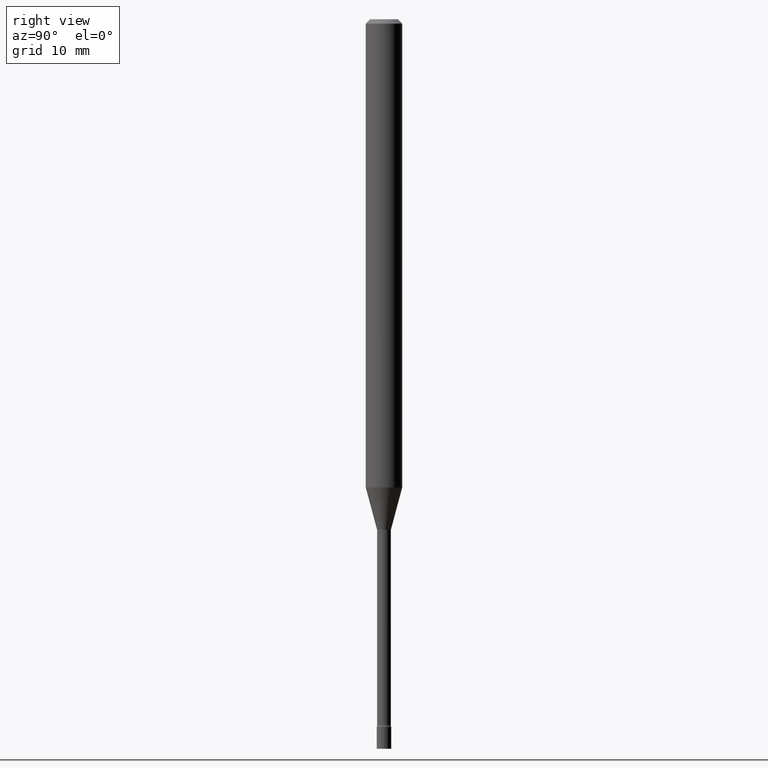
[diagram: clean part render]
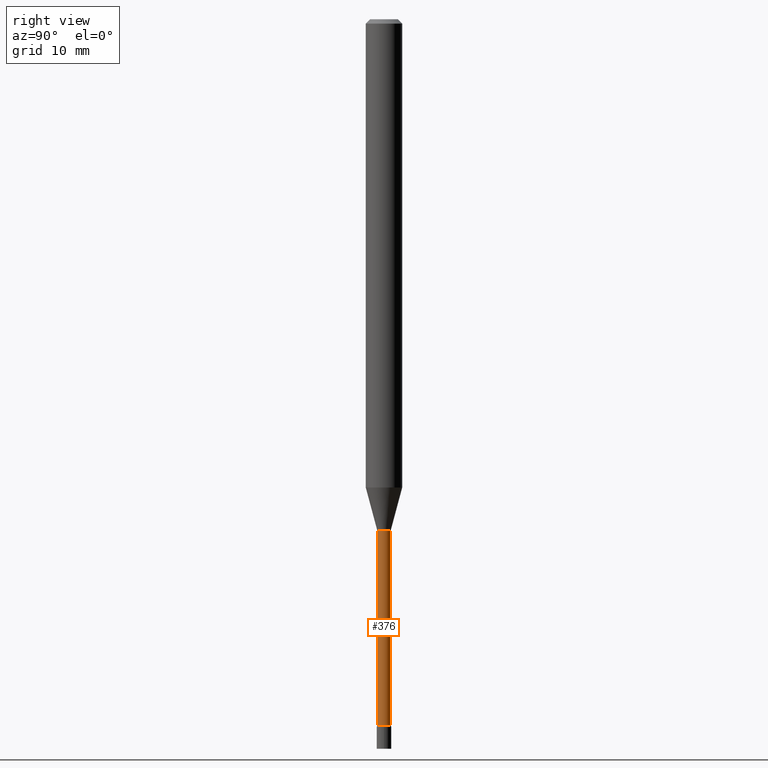
[diagram: same view with one face highlighted and labeled with its STEP entity id]
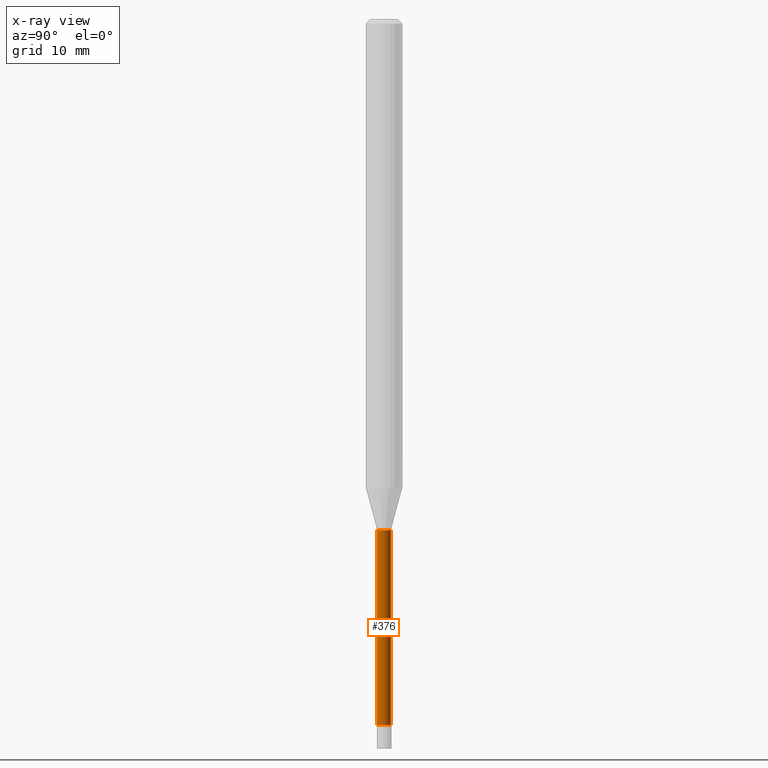
[diagram: x-ray of the same camera — body ghosted, the highlighted face saturated]
A machine part, right view. The second image highlights one B-rep face of the part: STEP entity #376.
The next image is the same camera in x-ray: the body ghosted, the highlighted face saturated — about 0% of this face is hidden behind the body in this view.
In plain terms, the highlighted cylindrical surface (edge-blend (fillet) strip) has radius 0.5969 mm, axis along (-0, 0, 1).
Its self-contained STEP definition (entity closure, byte-faithful):
#16 = CIRCLE ( 'NONE', #319, 0.02350000000000000352 ) ;
#17 = DIRECTION ( 'NONE',  ( -6.982962677686265133E-15, -1.000000000000000000, 0.000000000000000000 ) ) ;
#21 = VERTEX_POINT ( 'NONE', #28 ) ;
#28 = CARTESIAN_POINT ( 'NONE',  ( -1.640996229255844069E-16, -0.02350000000000612016, -1.751974787463811190 ) ) ;
#38 = DIRECTION ( 'NONE',  ( -6.982962677686265922E-15, -1.000000000000000000, 0.000000000000000000 ) ) ;
#54 = ORIENTED_EDGE ( 'NONE', *, *, #152, .F. ) ;
#87 = CARTESIAN_POINT ( 'NONE',  ( 5.914250230797479692E-29, -8.444045655943250067E-15, -2.418461651584689509 ) ) ;
#95 = DIRECTION ( 'NONE',  ( -2.445459586643511658E-29, 3.491494541751495870E-15, 1.000000000000000000 ) ) ;
#141 = ORIENTED_EDGE ( 'NONE', *, *, #272, .T. ) ;
#143 = VECTOR ( 'NONE', #311, 39.37007874015748143 ) ;
#152 = EDGE_CURVE ( 'NONE', #21, #366, #16, .T. ) ;
#176 = ORIENTED_EDGE ( 'NONE', *, *, #479, .T. ) ;
#195 = CIRCLE ( 'NONE', #341, 0.02350000000000008679 ) ;
#196 = DIRECTION ( 'NONE',  ( -2.445459586643511658E-29, 3.491494541751496264E-15, 1.000000000000000000 ) ) ;
#227 = FACE_OUTER_BOUND ( 'NONE', #425, .T. ) ;
#231 = CARTESIAN_POINT ( 'NONE',  ( 1.669775429036238399E-16, 0.02350000000000004516, -8.205012173116032265E-17 ) ) ;
#245 = DIRECTION ( 'NONE',  ( -2.445459586643511658E-29, 3.491494541751496264E-15, 1.000000000000000000 ) ) ;
#272 = EDGE_CURVE ( 'NONE', #411, #366, #502, .T. ) ;
#273 = CARTESIAN_POINT ( 'NONE',  ( -1.640996229255687037E-16, -0.02350000000000853143, -2.418461651584689509 ) ) ;
#288 = ORIENTED_EDGE ( 'NONE', *, *, #355, .F. ) ;
#311 = DIRECTION ( 'NONE',  ( -2.445459586643511658E-29, 3.491494541751495870E-15, 1.000000000000000000 ) ) ;
#319 = AXIS2_PLACEMENT_3D ( 'NONE', #413, #513, #38 ) ;
#341 = AXIS2_PLACEMENT_3D ( 'NONE', #87, #245, #17 ) ;
#349 = LINE ( 'NONE', #470, #143 ) ;
#355 = EDGE_CURVE ( 'NONE', #379, #21, #349, .T. ) ;
#362 = AXIS2_PLACEMENT_3D ( 'NONE', #385, #196, #481 ) ;
#366 = VERTEX_POINT ( 'NONE', #473 ) ;
#376 = ADVANCED_FACE ( 'NONE', ( #227 ), #390, .T. ) ;
#379 = VERTEX_POINT ( 'NONE', #273 ) ;
#385 = CARTESIAN_POINT ( 'NONE',  ( 0.000000000000000000, 0.000000000000000000, 0.000000000000000000 ) ) ;
#390 = CYLINDRICAL_SURFACE ( 'NONE', #362, 0.02350000000000004516 ) ;
#396 = CARTESIAN_POINT ( 'NONE',  ( 1.723066134218837606E-16, 0.02349999999999164563, -2.418461651584689509 ) ) ;
#411 = VERTEX_POINT ( 'NONE', #396 ) ;
#413 = CARTESIAN_POINT ( 'NONE',  ( 4.284383539561106192E-29, -6.117010407716134379E-15, -1.751974787463811190 ) ) ;
#425 = EDGE_LOOP ( 'NONE', ( #176, #141, #54, #288 ) ) ;
#436 = VECTOR ( 'NONE', #95, 39.37007874015748143 ) ;
#470 = CARTESIAN_POINT ( 'NONE',  ( -1.640996229256275477E-16, -0.02350000000000004516, 8.205012173116032265E-17 ) ) ;
#473 = CARTESIAN_POINT ( 'NONE',  ( 1.669775429036828812E-16, 0.02349999999999387995, -1.751974787463811190 ) ) ;
#479 = EDGE_CURVE ( 'NONE', #379, #411, #195, .T. ) ;
#481 = DIRECTION ( 'NONE',  ( -6.982962677686265133E-15, -1.000000000000000000, 3.491494541751496264E-15 ) ) ;
#502 = LINE ( 'NONE', #231, #436 ) ;
#513 = DIRECTION ( 'NONE',  ( -2.445459586643511658E-29, 3.491494541751496264E-15, 1.000000000000000000 ) ) ;